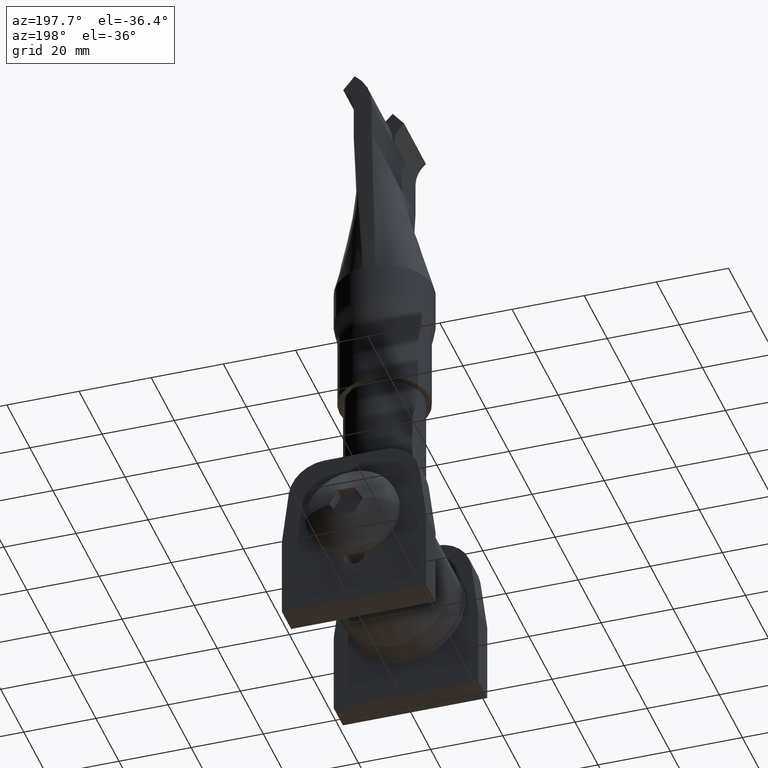
[diagram: clean part render]
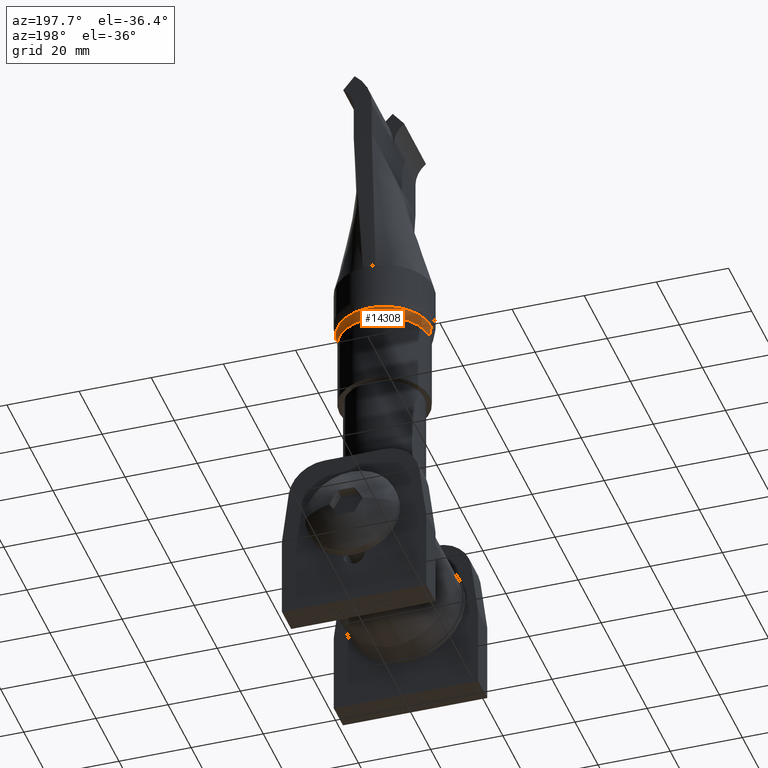
[diagram: same view with one face highlighted and labeled with its STEP entity id]
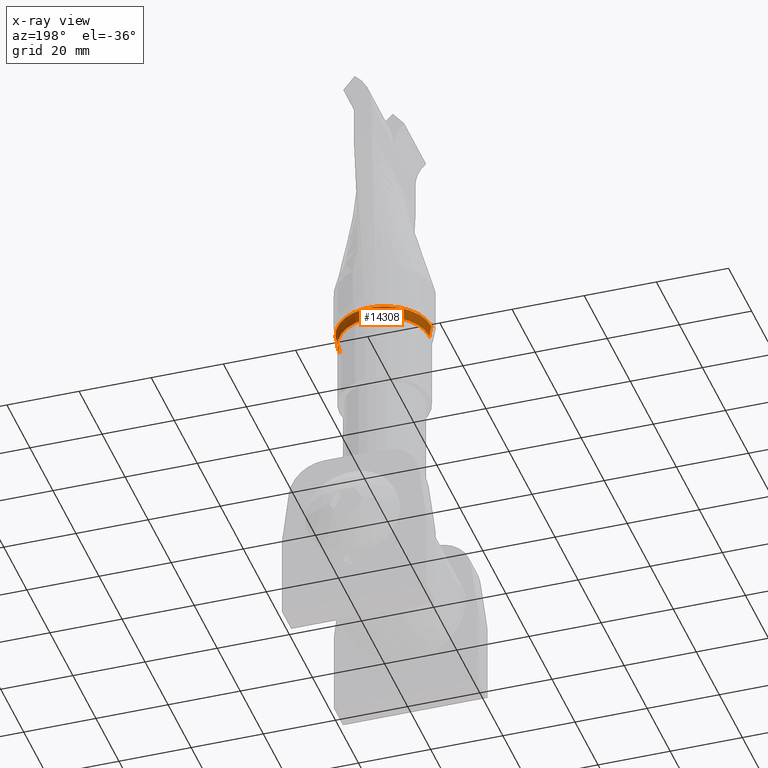
[diagram: x-ray of the same camera — body ghosted, the highlighted face saturated]
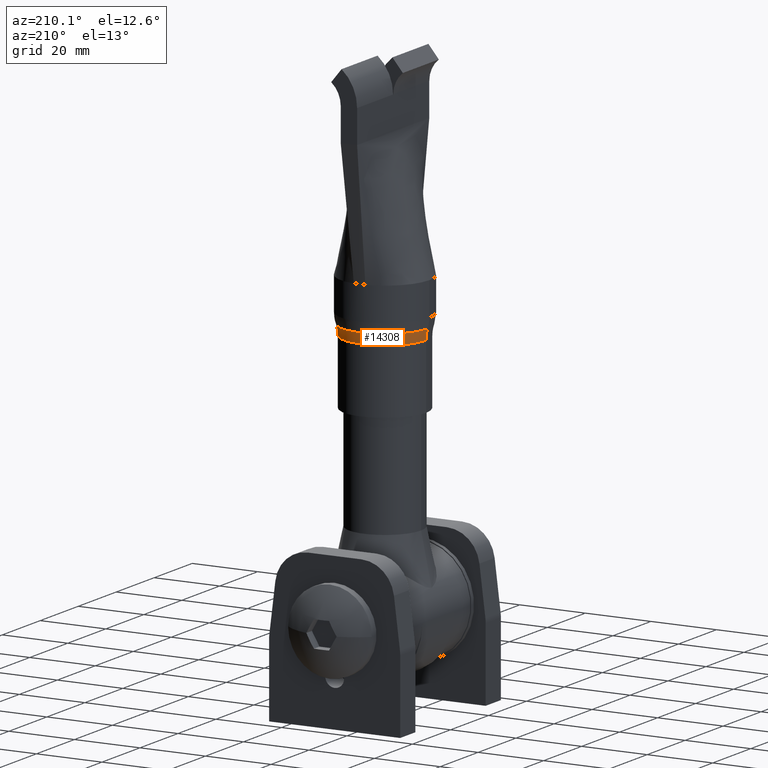
[diagram: same view with one face highlighted and labeled with its STEP entity id]
A machine part, auxiliary view. The second image highlights one B-rep face of the part: STEP entity #14308.
The next image is the same camera in x-ray: the body ghosted, the highlighted face saturated — about 0% of this face is hidden behind the body in this view.
A second angle (auxiliary view) of the same face is appended — the face is thin or edge-on in the first view.
In plain terms, the highlighted toroidal blend (fillet) surface has major radius 22.5 mm and minor (blend) radius 10 mm.
Its self-contained STEP definition (entity closure, byte-faithful):
#273 = ORIENTED_EDGE ( 'NONE', *, *, #19457, .F. ) ;
#664 = DIRECTION ( 'NONE',  ( -1.000000000000000000, 1.224646799147353500E-016, 0.0000000000000000000 ) ) ;
#730 = AXIS2_PLACEMENT_3D ( 'NONE', #9457, #17229, #9522 ) ;
#781 = EDGE_CURVE ( 'NONE', #9515, #2728, #18178, .T. ) ;
#1103 = EDGE_LOOP ( 'NONE', ( #273, #3109, #10728, #19207 ) ) ;
#1342 = AXIS2_PLACEMENT_3D ( 'NONE', #19333, #11708, #664 ) ;
#2247 = DIRECTION ( 'NONE',  ( 0.0000000000000000000, 0.0000000000000000000, 1.000000000000000000 ) ) ;
#2728 = VERTEX_POINT ( 'NONE', #11060 ) ;
#3109 = ORIENTED_EDGE ( 'NONE', *, *, #4807, .T. ) ;
#4541 = CARTESIAN_POINT ( 'NONE',  ( -12.99999999999999800, 1.592040838891558900E-015, 22.76360005565852200 ) ) ;
#4807 = EDGE_CURVE ( 'NONE', #6207, #9515, #13804, .T. ) ;
#5375 = CARTESIAN_POINT ( 'NONE',  ( 0.0000000000000000000, 0.0000000000000000000, 19.64110105645932300 ) ) ;
#6207 = VERTEX_POINT ( 'NONE', #4541 ) ;
#6534 = CARTESIAN_POINT ( 'NONE',  ( -12.50000000000000000, 0.0000000000000000000, 19.64110105645932300 ) ) ;
#8251 = AXIS2_PLACEMENT_3D ( 'NONE', #9234, #12335, #15598 ) ;
#8785 = CIRCLE ( 'NONE', #10235, 12.50000000000000000 ) ;
#9144 = EDGE_CURVE ( 'NONE', #18321, #2728, #8785, .T. ) ;
#9234 = CARTESIAN_POINT ( 'NONE',  ( 22.50000000000000000, 0.0000000000000000000, 19.64110105645932300 ) ) ;
#9457 = CARTESIAN_POINT ( 'NONE',  ( 0.0000000000000000000, 0.0000000000000000000, 22.76360005565852200 ) ) ;
#9515 = VERTEX_POINT ( 'NONE', #10544 ) ;
#9522 = DIRECTION ( 'NONE',  ( -1.000000000000000000, 0.0000000000000000000, 0.0000000000000000000 ) ) ;
#10235 = AXIS2_PLACEMENT_3D ( 'NONE', #5375, #16519, #18793 ) ;
#10544 = CARTESIAN_POINT ( 'NONE',  ( 12.99999999999999800, 0.0000000000000000000, 22.76360005565852200 ) ) ;
#10728 = ORIENTED_EDGE ( 'NONE', *, *, #781, .T. ) ;
#11060 = CARTESIAN_POINT ( 'NONE',  ( 12.50000000000000000, 1.530808498934191500E-015, 19.64110105645932300 ) ) ;
#11546 = CARTESIAN_POINT ( 'NONE',  ( 0.0000000000000000000, 0.0000000000000000000, 19.64110105645932300 ) ) ;
#11708 = DIRECTION ( 'NONE',  ( 1.224646799147353200E-016, 1.000000000000000000, -0.0000000000000000000 ) ) ;
#12335 = DIRECTION ( 'NONE',  ( 0.0000000000000000000, -1.000000000000000000, 0.0000000000000000000 ) ) ;
#12388 = TOROIDAL_SURFACE ( 'NONE', #18750, 22.50000000000000000, 10.00000000000000000 ) ;
#13804 = CIRCLE ( 'NONE', #730, 12.99999999999999600 ) ;
#14308 = ADVANCED_FACE ( 'NONE', ( #19927 ), #12388, .F. ) ;
#14412 = DIRECTION ( 'NONE',  ( 1.000000000000000000, 0.0000000000000000000, 0.0000000000000000000 ) ) ;
#15598 = DIRECTION ( 'NONE',  ( 0.0000000000000000000, 0.0000000000000000000, -1.000000000000000000 ) ) ;
#16519 = DIRECTION ( 'NONE',  ( -0.0000000000000000000, -0.0000000000000000000, -1.000000000000000000 ) ) ;
#17229 = DIRECTION ( 'NONE',  ( -0.0000000000000000000, -0.0000000000000000000, -1.000000000000000000 ) ) ;
#18178 = CIRCLE ( 'NONE', #8251, 10.00000000000000000 ) ;
#18321 = VERTEX_POINT ( 'NONE', #6534 ) ;
#18750 = AXIS2_PLACEMENT_3D ( 'NONE', #11546, #2247, #14412 ) ;
#18793 = DIRECTION ( 'NONE',  ( 1.000000000000000000, 0.0000000000000000000, 0.0000000000000000000 ) ) ;
#19207 = ORIENTED_EDGE ( 'NONE', *, *, #9144, .F. ) ;
#19333 = CARTESIAN_POINT ( 'NONE',  ( -22.50000000000000000, 2.755455298081544800E-015, 19.64110105645932300 ) ) ;
#19457 = EDGE_CURVE ( 'NONE', #6207, #18321, #19818, .T. ) ;
#19818 = CIRCLE ( 'NONE', #1342, 10.00000000000000200 ) ;
#19927 = FACE_OUTER_BOUND ( 'NONE', #1103, .T. ) ;